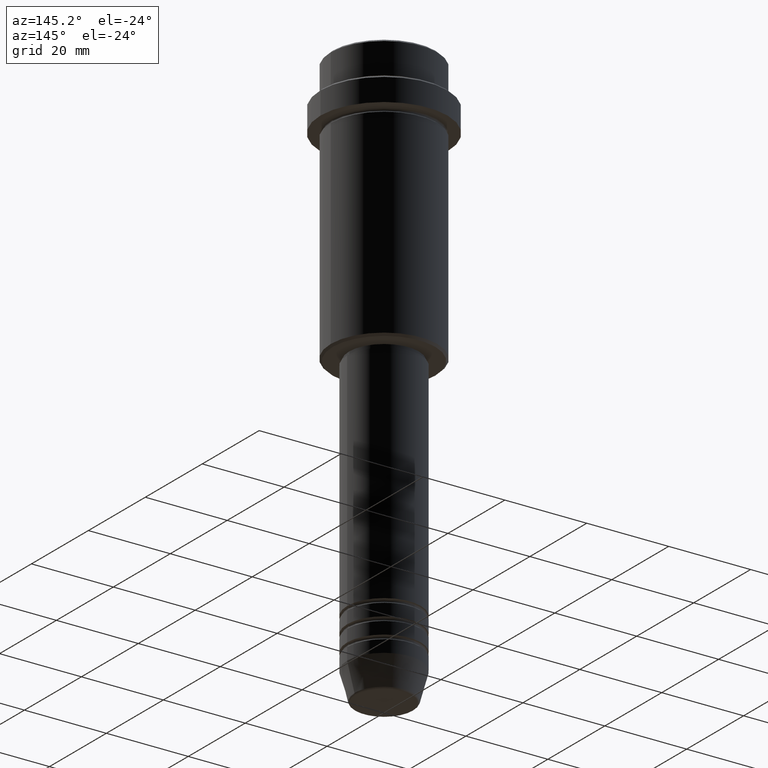
[diagram: clean part render]
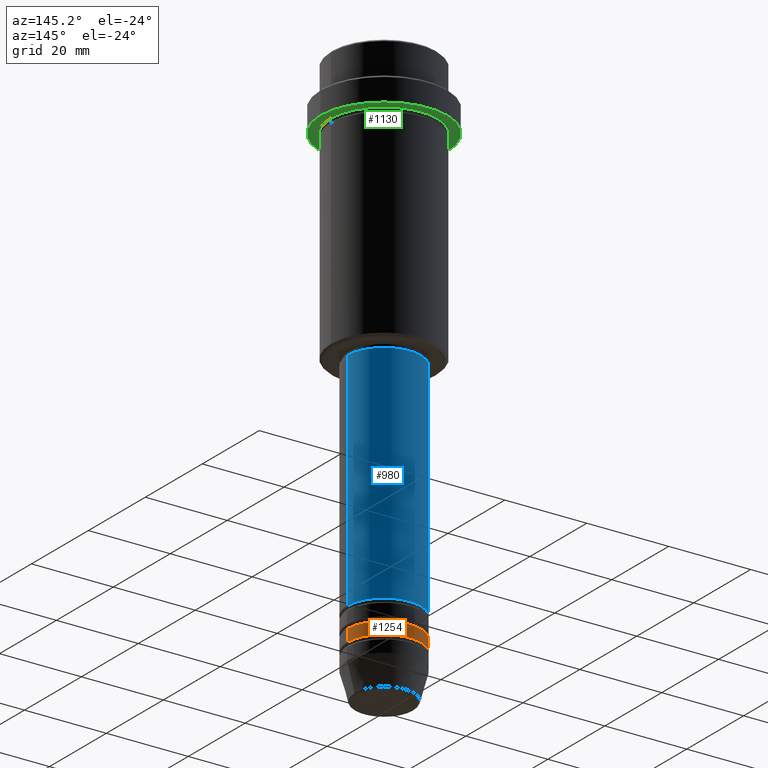
[diagram: same view with three faces highlighted in distinct colors, each labeled with its STEP entity id]
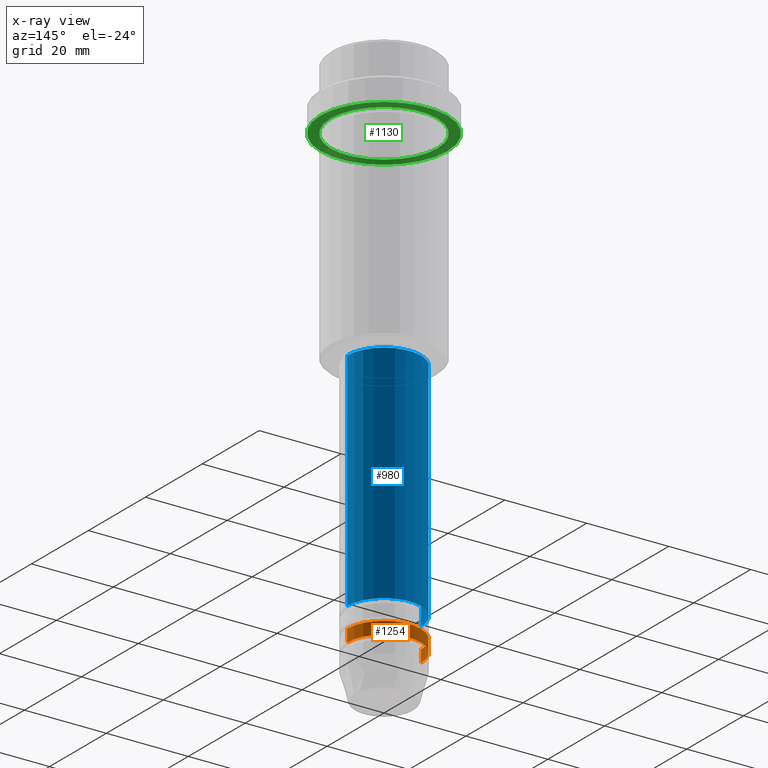
[diagram: x-ray of the same camera — body ghosted, the three highlighted faces saturated]
A machine part, auxiliary view with three faces highlighted in distinct colors.
The next image is the same camera in x-ray (body ghosted, the three faces saturated) — at least one of them is partly hidden behind the body in this view.
Their STEP definitions:

[orange] entity #1254 — the highlighted cylindrical surface (partial cylindrical patch) has radius 9 mm, axis along (-0, -0, 1).
#15 = CARTESIAN_POINT ( 'NONE',  ( -9.000000000000000000, 1.102182119232617714E-15, -125.9999999999998863 ) ) ;
#79 = DIRECTION ( 'NONE',  ( -0.000000000000000000, -0.000000000000000000, 1.000000000000000000 ) ) ;
#175 = DIRECTION ( 'NONE',  ( 1.000000000000000000, 0.000000000000000000, 0.000000000000000000 ) ) ;
#215 = ORIENTED_EDGE ( 'NONE', *, *, #1382, .F. ) ;
#304 = CARTESIAN_POINT ( 'NONE',  ( 0.000000000000000000, 0.000000000000000000, 0.000000000000000000 ) ) ;
#333 = VECTOR ( 'NONE', #785, 1000.000000000000000 ) ;
#345 = CARTESIAN_POINT ( 'NONE',  ( -9.000000000000000000, 1.102182119232617714E-15, 0.000000000000000000 ) ) ;
#370 = CARTESIAN_POINT ( 'NONE',  ( -9.000000000000000000, 1.102182119232617714E-15, -128.9999999999998863 ) ) ;
#384 = AXIS2_PLACEMENT_3D ( 'NONE', #1192, #1084, #1201 ) ;
#392 = CYLINDRICAL_SURFACE ( 'NONE', #593, 9.000000000000000000 ) ;
#394 = ORIENTED_EDGE ( 'NONE', *, *, #720, .T. ) ;
#424 = CARTESIAN_POINT ( 'NONE',  ( 0.000000000000000000, 0.000000000000000000, -125.9999999999998863 ) ) ;
#449 = CARTESIAN_POINT ( 'NONE',  ( 9.000000000000000000, 0.000000000000000000, 0.000000000000000000 ) ) ;
#511 = DIRECTION ( 'NONE',  ( 1.000000000000000000, 0.000000000000000000, 0.000000000000000000 ) ) ;
#523 = FACE_OUTER_BOUND ( 'NONE', #697, .T. ) ;
#593 = AXIS2_PLACEMENT_3D ( 'NONE', #304, #79, #175 ) ;
#623 = EDGE_CURVE ( 'NONE', #641, #1138, #1003, .T. ) ;
#635 = VERTEX_POINT ( 'NONE', #1099 ) ;
#641 = VERTEX_POINT ( 'NONE', #652 ) ;
#652 = CARTESIAN_POINT ( 'NONE',  ( 9.000000000000000000, 0.000000000000000000, -128.9999999999998863 ) ) ;
#684 = AXIS2_PLACEMENT_3D ( 'NONE', #424, #724, #511 ) ;
#697 = EDGE_LOOP ( 'NONE', ( #969, #394, #991, #215 ) ) ;
#720 = EDGE_CURVE ( 'NONE', #1138, #1348, #878, .T. ) ;
#724 = DIRECTION ( 'NONE',  ( -0.000000000000000000, -0.000000000000000000, 1.000000000000000000 ) ) ;
#785 = DIRECTION ( 'NONE',  ( -0.000000000000000000, -0.000000000000000000, 1.000000000000000000 ) ) ;
#849 = VECTOR ( 'NONE', #1194, 1000.000000000000000 ) ;
#878 = LINE ( 'NONE', #345, #333 ) ;
#969 = ORIENTED_EDGE ( 'NONE', *, *, #623, .T. ) ;
#991 = ORIENTED_EDGE ( 'NONE', *, *, #1245, .F. ) ;
#1003 = CIRCLE ( 'NONE', #384, 9.000000000000000000 ) ;
#1084 = DIRECTION ( 'NONE',  ( -0.000000000000000000, -0.000000000000000000, 1.000000000000000000 ) ) ;
#1086 = LINE ( 'NONE', #449, #849 ) ;
#1099 = CARTESIAN_POINT ( 'NONE',  ( 9.000000000000000000, 0.000000000000000000, -125.9999999999998863 ) ) ;
#1138 = VERTEX_POINT ( 'NONE', #370 ) ;
#1192 = CARTESIAN_POINT ( 'NONE',  ( 0.000000000000000000, 0.000000000000000000, -128.9999999999998863 ) ) ;
#1194 = DIRECTION ( 'NONE',  ( -0.000000000000000000, -0.000000000000000000, 1.000000000000000000 ) ) ;
#1201 = DIRECTION ( 'NONE',  ( 1.000000000000000000, 0.000000000000000000, 0.000000000000000000 ) ) ;
#1245 = EDGE_CURVE ( 'NONE', #635, #1348, #1376, .T. ) ;
#1254 = ADVANCED_FACE ( 'NONE', ( #523 ), #392, .T. ) ;
#1348 = VERTEX_POINT ( 'NONE', #15 ) ;
#1376 = CIRCLE ( 'NONE', #684, 9.000000000000000000 ) ;
#1382 = EDGE_CURVE ( 'NONE', #641, #635, #1086, .T. ) ;

[blue] entity #980 — the highlighted cylindrical surface (partial cylindrical patch) has radius 9 mm, axis along (-0, -0, 1).
#21 = AXIS2_PLACEMENT_3D ( 'NONE', #431, #864, #660 ) ;
#56 = CARTESIAN_POINT ( 'NONE',  ( -9.000000000000000000, 1.102182119232617714E-15, -120.9999999999999005 ) ) ;
#74 = LINE ( 'NONE', #499, #524 ) ;
#91 = VECTOR ( 'NONE', #707, 1000.000000000000000 ) ;
#93 = ORIENTED_EDGE ( 'NONE', *, *, #381, .F. ) ;
#127 = ORIENTED_EDGE ( 'NONE', *, *, #1280, .T. ) ;
#198 = DIRECTION ( 'NONE',  ( 1.000000000000000000, 0.000000000000000000, 0.000000000000000000 ) ) ;
#317 = EDGE_CURVE ( 'NONE', #1392, #436, #1117, .T. ) ;
#319 = FACE_OUTER_BOUND ( 'NONE', #1399, .T. ) ;
#324 = CARTESIAN_POINT ( 'NONE',  ( 9.000000000000001776, 0.000000000000000000, -66.00000000000001421 ) ) ;
#330 = ORIENTED_EDGE ( 'NONE', *, *, #317, .F. ) ;
#336 = CIRCLE ( 'NONE', #799, 9.000000000000000000 ) ;
#381 = EDGE_CURVE ( 'NONE', #618, #1392, #1141, .T. ) ;
#431 = CARTESIAN_POINT ( 'NONE',  ( 0.000000000000000000, 0.000000000000000000, 0.000000000000000000 ) ) ;
#436 = VERTEX_POINT ( 'NONE', #971 ) ;
#499 = CARTESIAN_POINT ( 'NONE',  ( -9.000000000000001776, 1.102182119232617911E-15, 0.000000000000000000 ) ) ;
#524 = VECTOR ( 'NONE', #1176, 1000.000000000000000 ) ;
#562 = EDGE_CURVE ( 'NONE', #761, #436, #74, .T. ) ;
#618 = VERTEX_POINT ( 'NONE', #752 ) ;
#647 = ORIENTED_EDGE ( 'NONE', *, *, #562, .T. ) ;
#660 = DIRECTION ( 'NONE',  ( 1.000000000000000000, 0.000000000000000000, 0.000000000000000000 ) ) ;
#700 = AXIS2_PLACEMENT_3D ( 'NONE', #1057, #1146, #198 ) ;
#707 = DIRECTION ( 'NONE',  ( -0.000000000000000000, -0.000000000000000000, 1.000000000000000000 ) ) ;
#752 = CARTESIAN_POINT ( 'NONE',  ( 9.000000000000000000, 0.000000000000000000, -120.9999999999999005 ) ) ;
#761 = VERTEX_POINT ( 'NONE', #56 ) ;
#768 = CYLINDRICAL_SURFACE ( 'NONE', #21, 9.000000000000001776 ) ;
#799 = AXIS2_PLACEMENT_3D ( 'NONE', #1395, #1409, #1158 ) ;
#864 = DIRECTION ( 'NONE',  ( -0.000000000000000000, -0.000000000000000000, 1.000000000000000000 ) ) ;
#971 = CARTESIAN_POINT ( 'NONE',  ( -9.000000000000001776, 1.102182119232617911E-15, -66.00000000000001421 ) ) ;
#980 = ADVANCED_FACE ( 'NONE', ( #319 ), #768, .T. ) ;
#1057 = CARTESIAN_POINT ( 'NONE',  ( 0.000000000000000000, 0.000000000000000000, -66.00000000000001421 ) ) ;
#1117 = CIRCLE ( 'NONE', #700, 9.000000000000001776 ) ;
#1141 = LINE ( 'NONE', #1273, #91 ) ;
#1146 = DIRECTION ( 'NONE',  ( -0.000000000000000000, -0.000000000000000000, 1.000000000000000000 ) ) ;
#1158 = DIRECTION ( 'NONE',  ( 1.000000000000000000, 0.000000000000000000, 0.000000000000000000 ) ) ;
#1176 = DIRECTION ( 'NONE',  ( -0.000000000000000000, -0.000000000000000000, 1.000000000000000000 ) ) ;
#1273 = CARTESIAN_POINT ( 'NONE',  ( 9.000000000000001776, 0.000000000000000000, 0.000000000000000000 ) ) ;
#1280 = EDGE_CURVE ( 'NONE', #618, #761, #336, .T. ) ;
#1392 = VERTEX_POINT ( 'NONE', #324 ) ;
#1395 = CARTESIAN_POINT ( 'NONE',  ( 0.000000000000000000, 0.000000000000000000, -120.9999999999999005 ) ) ;
#1399 = EDGE_LOOP ( 'NONE', ( #127, #647, #330, #93 ) ) ;
#1409 = DIRECTION ( 'NONE',  ( -0.000000000000000000, -0.000000000000000000, 1.000000000000000000 ) ) ;

[green] entity #1130 — the highlighted planar face has unit normal (0, 0, -1).
#22 = VERTEX_POINT ( 'NONE', #373 ) ;
#33 = DIRECTION ( 'NONE',  ( 0.000000000000000000, 0.000000000000000000, -1.000000000000000000 ) ) ;
#38 = VERTEX_POINT ( 'NONE', #790 ) ;
#45 = AXIS2_PLACEMENT_3D ( 'NONE', #467, #664, #1125 ) ;
#59 = CARTESIAN_POINT ( 'NONE',  ( 0.000000000000000000, 0.000000000000000000, -15.00000000000000000 ) ) ;
#70 = EDGE_CURVE ( 'NONE', #1321, #38, #1301, .T. ) ;
#113 = EDGE_CURVE ( 'NONE', #38, #1321, #751, .T. ) ;
#118 = ORIENTED_EDGE ( 'NONE', *, *, #113, .F. ) ;
#130 = CARTESIAN_POINT ( 'NONE',  ( 0.000000000000000000, 0.000000000000000000, -15.00000000000000000 ) ) ;
#133 = DIRECTION ( 'NONE',  ( -1.000000000000000000, 0.000000000000000000, -0.000000000000000000 ) ) ;
#154 = EDGE_CURVE ( 'NONE', #22, #712, #273, .T. ) ;
#174 = ORIENTED_EDGE ( 'NONE', *, *, #154, .T. ) ;
#176 = DIRECTION ( 'NONE',  ( -1.000000000000000000, 0.000000000000000000, 0.000000000000000000 ) ) ;
#265 = ORIENTED_EDGE ( 'NONE', *, *, #366, .T. ) ;
#273 = CIRCLE ( 'NONE', #1007, 12.99999999999999645 ) ;
#366 = EDGE_CURVE ( 'NONE', #712, #22, #1187, .T. ) ;
#373 = CARTESIAN_POINT ( 'NONE',  ( 12.99999999999999645, 1.592040838891558701E-15, -15.00000000000000000 ) ) ;
#413 = AXIS2_PLACEMENT_3D ( 'NONE', #1361, #33, #133 ) ;
#467 = CARTESIAN_POINT ( 'NONE',  ( 0.000000000000000000, 0.000000000000000000, -15.00000000000000000 ) ) ;
#515 = DIRECTION ( 'NONE',  ( -0.000000000000000000, -0.000000000000000000, 1.000000000000000000 ) ) ;
#557 = CARTESIAN_POINT ( 'NONE',  ( 15.50000000000000000, 0.000000000000000000, -15.00000000000000000 ) ) ;
#567 = DIRECTION ( 'NONE',  ( -0.000000000000000000, -0.000000000000000000, 1.000000000000000000 ) ) ;
#578 = FACE_BOUND ( 'NONE', #1011, .T. ) ;
#664 = DIRECTION ( 'NONE',  ( -0.000000000000000000, -0.000000000000000000, 1.000000000000000000 ) ) ;
#712 = VERTEX_POINT ( 'NONE', #1314 ) ;
#751 = CIRCLE ( 'NONE', #1189, 15.50000000000000000 ) ;
#790 = CARTESIAN_POINT ( 'NONE',  ( -15.50000000000000000, 1.898202538678397557E-15, -15.00000000000000000 ) ) ;
#902 = EDGE_LOOP ( 'NONE', ( #1157, #118 ) ) ;
#944 = CARTESIAN_POINT ( 'NONE',  ( 0.000000000000000000, 0.000000000000000000, -15.00000000000000000 ) ) ;
#1007 = AXIS2_PLACEMENT_3D ( 'NONE', #59, #515, #1276 ) ;
#1011 = EDGE_LOOP ( 'NONE', ( #265, #174 ) ) ;
#1125 = DIRECTION ( 'NONE',  ( 1.000000000000000000, 0.000000000000000000, 0.000000000000000000 ) ) ;
#1130 = ADVANCED_FACE ( 'NONE', ( #578, #1243 ), #1150, .T. ) ;
#1142 = AXIS2_PLACEMENT_3D ( 'NONE', #944, #1152, #176 ) ;
#1150 = PLANE ( 'NONE',  #413 ) ;
#1152 = DIRECTION ( 'NONE',  ( -0.000000000000000000, -0.000000000000000000, 1.000000000000000000 ) ) ;
#1157 = ORIENTED_EDGE ( 'NONE', *, *, #70, .F. ) ;
#1187 = CIRCLE ( 'NONE', #1142, 12.99999999999999645 ) ;
#1189 = AXIS2_PLACEMENT_3D ( 'NONE', #130, #567, #1229 ) ;
#1229 = DIRECTION ( 'NONE',  ( 1.000000000000000000, 0.000000000000000000, 0.000000000000000000 ) ) ;
#1243 = FACE_OUTER_BOUND ( 'NONE', #902, .T. ) ;
#1276 = DIRECTION ( 'NONE',  ( -1.000000000000000000, 0.000000000000000000, 0.000000000000000000 ) ) ;
#1301 = CIRCLE ( 'NONE', #45, 15.50000000000000000 ) ;
#1314 = CARTESIAN_POINT ( 'NONE',  ( -12.99999999999999645, 0.000000000000000000, -15.00000000000000000 ) ) ;
#1321 = VERTEX_POINT ( 'NONE', #557 ) ;
#1361 = CARTESIAN_POINT ( 'NONE',  ( 0.000000000000000000, 15.50000000000000000, -15.00000000000000000 ) ) ;